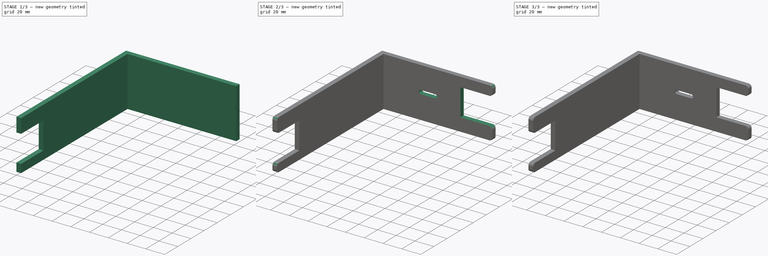
[diagram: build sequence overview — one tinted view per stage of 3, left to right]
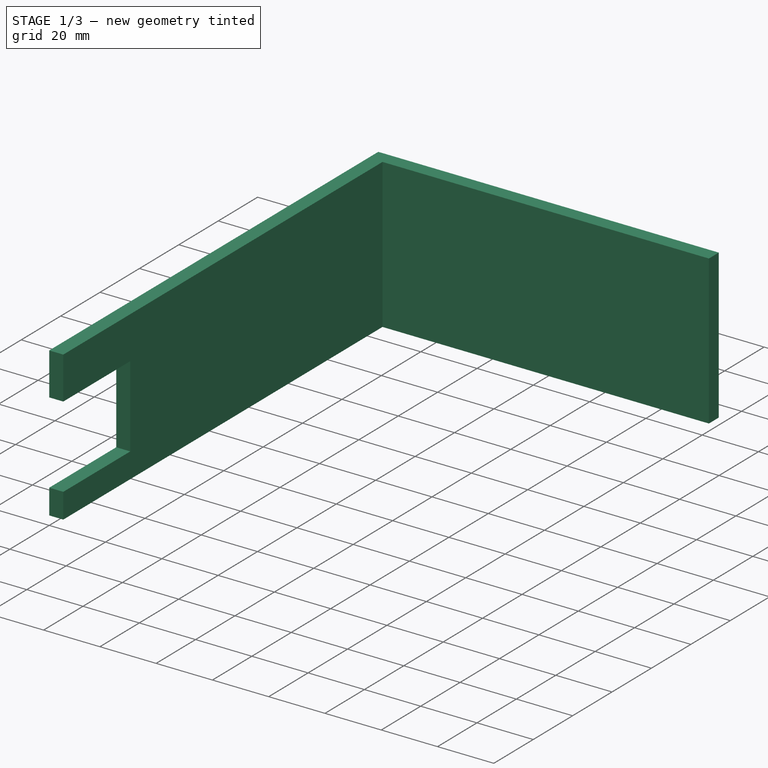
[diagram: stage 1 of 3 — iso view after this stage's code; geometry added in this stage tinted green]
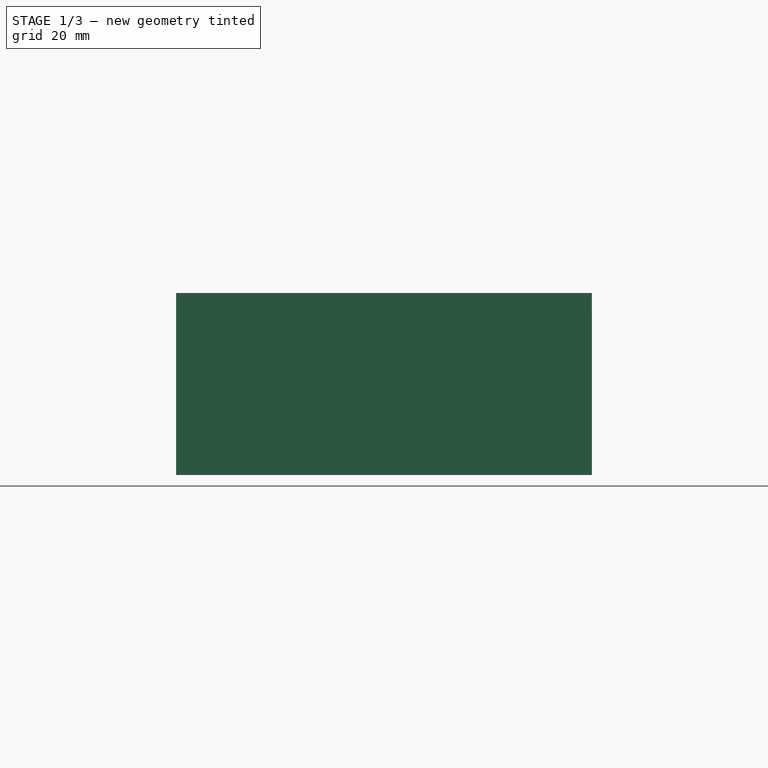
[diagram: stage 1 of 3 — front view after this stage's code; geometry added in this stage tinted green]
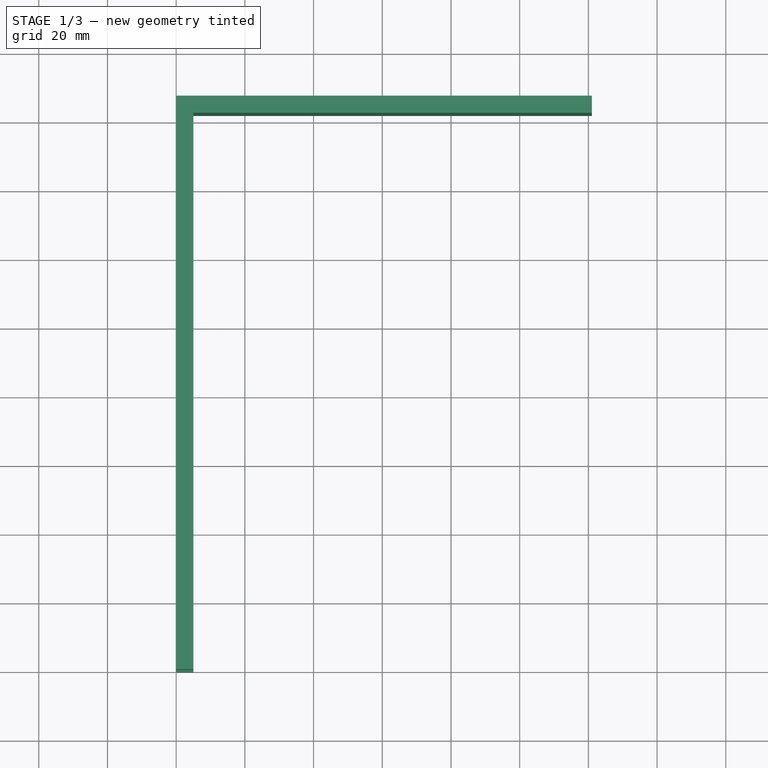
[diagram: stage 1 of 3 — top view after this stage's code; geometry added in this stage tinted green]
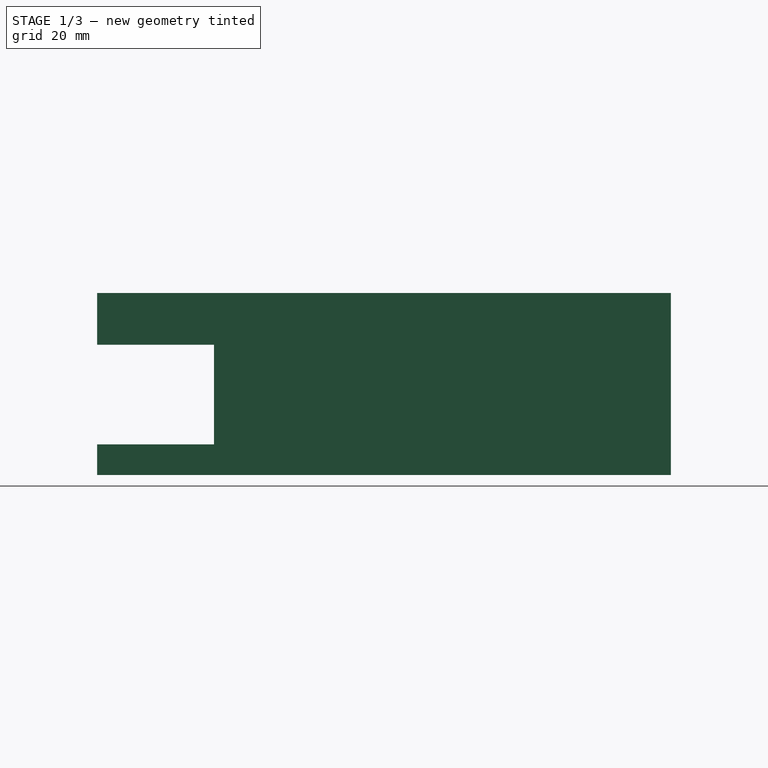
[diagram: stage 1 of 3 — right view after this stage's code; geometry added in this stage tinted green]
FCSTD DOCUMENT  (FreeCAD 0.17R8408 (Git))
Label: tie down jig
License: All rights reserved
LicenseURL: http://en.wikipedia.org/wiki/All_rights_reserved
objects: Sketcher::SketchObject×4, PartDesign::Pocket×4, PartDesign::Fillet×2, PartDesign::Pad×1, Part::Part2DObjectPython×1, PartDesign::Body×1
note: 18 computed .brp shape members not serialized (recipe doc carries the construction recipe); baked Part::Feature solids carry a one-line shape summary decoded from their .brp

FEATURE [Sketcher::SketchObject] Sketch
  MapMode = 5
  Support = -> [XY_Plane]
  sketch-geometry (6):
    g0: LineSegment StartX=0 StartY=0 StartZ=0 EndX=5 EndY=0 EndZ=0
    g1: LineSegment StartX=5 StartY=0 StartZ=0 EndX=5 EndY=162 EndZ=0
    g2: LineSegment StartX=0 StartY=167 StartZ=0 EndX=0 EndY=0 EndZ=0
    g3: LineSegment StartX=0 StartY=167 StartZ=0 EndX=121 EndY=167 EndZ=0
    g4: LineSegment StartX=121 StartY=167 StartZ=0 EndX=121 EndY=162 EndZ=0
    g5: LineSegment StartX=121 StartY=162 StartZ=0 EndX=5 EndY=162 EndZ=0
  constraints (17):
    c: Coincident(g0,g1)
    c: Coincident(g2,g0)
    c: Horizontal(g0)
    c: Vertical(g1)
    c: Vertical(g2)
    c: Distance(g2) = 167
    c: Coincident(g0,g-1)
    c: Distance(g0) = 5
    c: Coincident(g3,g4)
    c: Coincident(g4,g5)
    c: Horizontal(g3)
    c: Horizontal(g5)
    c: Vertical(g4)
    c: Distance(g4) = 5
    c: Coincident(g1,g5)
    c: Coincident(g2,g3)
    c: Distance(g3) = 121
FEATURE [PartDesign::Pad] Pad
  Length = 53
  Length2 = 100
  Profile = -> Sketch
  Type = 0
FEATURE [Sketcher::SketchObject] Sketch001
  MapMode = 5
  Placement = pos=(0,0,0) rot=(0.57735,-0.57735,-0.57735;2.0944rad)
  Support = -> [Pad]
  sketch-geometry (4):
    g0: LineSegment StartX=1 StartY=37.9111 StartZ=0 EndX=-34 EndY=37.9111 EndZ=0
    g1: LineSegment StartX=-34 StartY=37.9111 StartZ=0 EndX=-34 EndY=8.9111 EndZ=0
    g2: LineSegment StartX=-34 StartY=8.9111 StartZ=0 EndX=1 EndY=8.9111 EndZ=0
    g3: LineSegment StartX=1 StartY=8.9111 StartZ=0 EndX=1 EndY=37.9111 EndZ=0
  constraints (12):
    c: Coincident(g0,g1)
    c: Coincident(g1,g2)
    c: Coincident(g2,g3)
    c: Coincident(g3,g0)
    c: Horizontal(g0)
    c: Horizontal(g2)
    c: Vertical(g1)
    c: Vertical(g3)
    c: Distance(g0) = 35
    c: Distance(g1) = 29
    c: DistanceX(g1) = -34
    c: DistanceY(g1) = 8.9111
FEATURE [PartDesign::Pocket] Pocket
  BaseFeature = -> Pad
  Length = 5
  Profile = -> Sketch001
  Type = 0
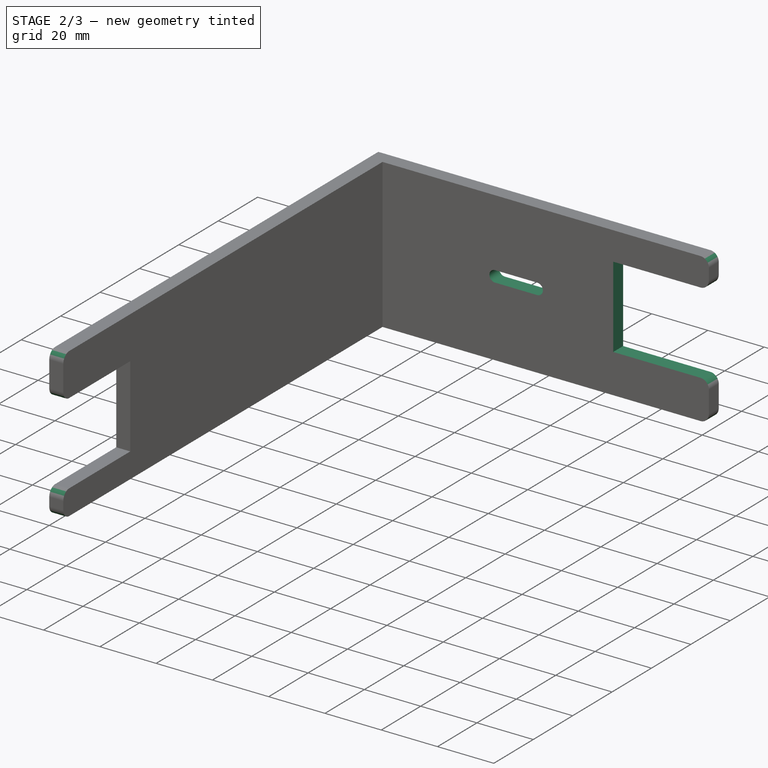
[diagram: stage 2 of 3 — iso view after this stage's code; geometry added in this stage tinted green]
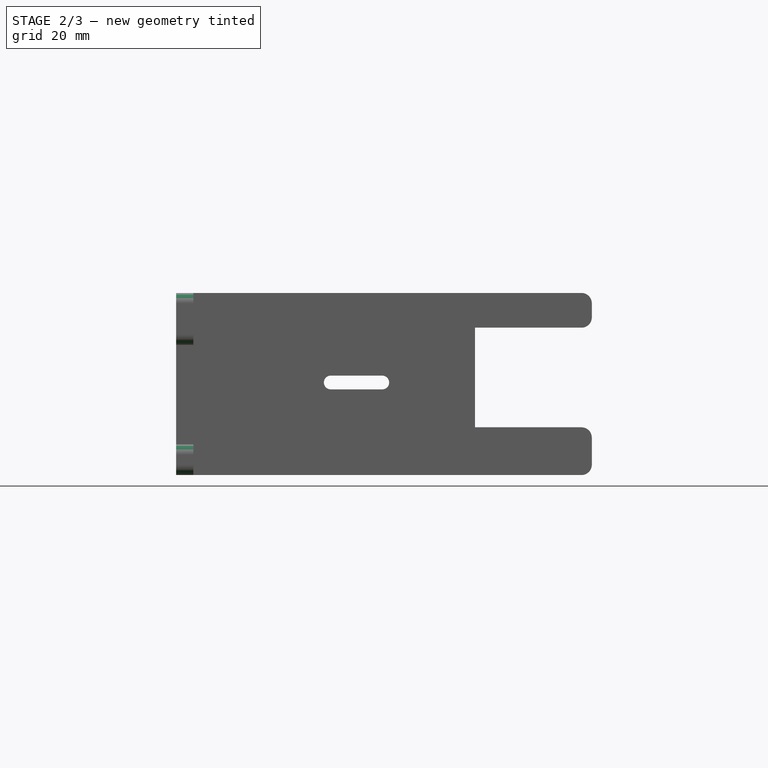
[diagram: stage 2 of 3 — front view after this stage's code; geometry added in this stage tinted green]
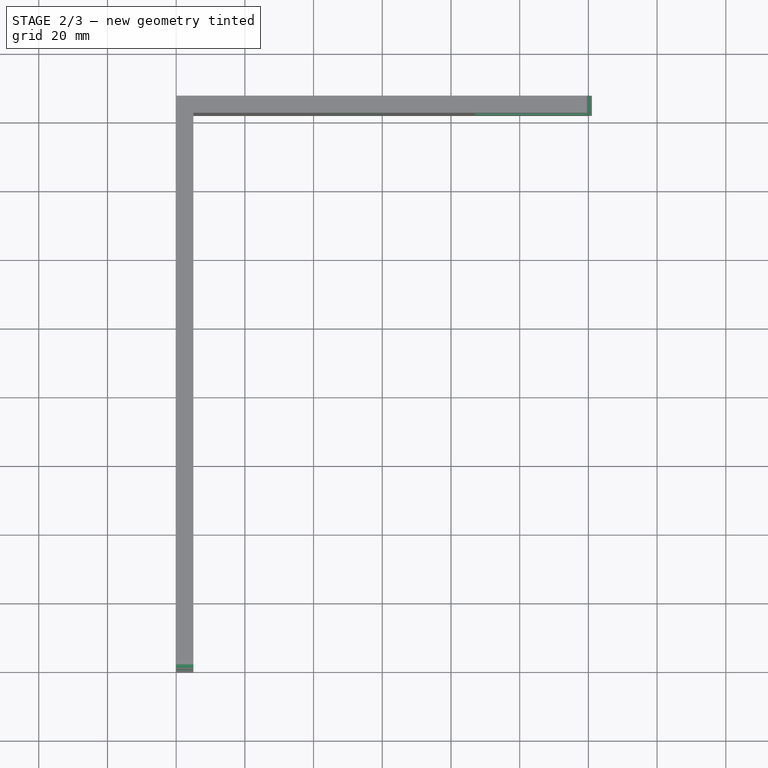
[diagram: stage 2 of 3 — top view after this stage's code; geometry added in this stage tinted green]
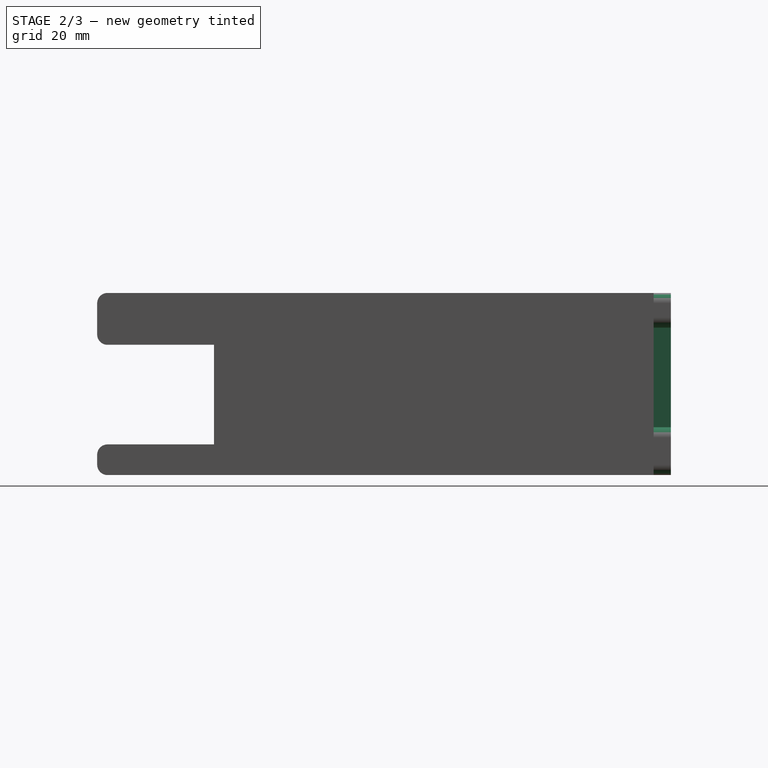
[diagram: stage 2 of 3 — right view after this stage's code; geometry added in this stage tinted green]
FEATURE [Sketcher::SketchObject] Sketch002
  MapMode = 5
  Placement = pos=(0,167,0) rot=(0,0.707107,0.707107;3.14159rad)
  Support = -> [Pocket]
  sketch-geometry (4):
    g0: LineSegment StartX=-87 StartY=42.8944 StartZ=0 EndX=-122 EndY=42.8944 EndZ=0
    g1: LineSegment StartX=-122 StartY=42.8944 StartZ=0 EndX=-122 EndY=13.8944 EndZ=0
    g2: LineSegment StartX=-122 StartY=13.8944 StartZ=0 EndX=-87 EndY=13.8944 EndZ=0
    g3: LineSegment StartX=-87 StartY=13.8944 StartZ=0 EndX=-87 EndY=42.8944 EndZ=0
  constraints (12):
    c: Coincident(g0,g1)
    c: Coincident(g1,g2)
    c: Coincident(g2,g3)
    c: Coincident(g3,g0)
    c: Horizontal(g0)
    c: Horizontal(g2)
    c: Vertical(g1)
    c: Vertical(g3)
    c: Distance(g3) = 29
    c: Distance(g0) = 35
    c: DistanceX(g2) = -87
    c: DistanceY(g2) = 13.8944
FEATURE [PartDesign::Pocket] Pocket001
  BaseFeature = -> Pocket
  Length = 5
  Profile = -> Sketch002
  Type = 0
FEATURE [PartDesign::Fillet] Fillet
  Base = -> Pocket001 [Edge1,Edge3,Edge38,Edge36,Edge37,Edge40,Edge29,Edge7]
  BaseFeature = -> Pocket001
  Radius = 3
FEATURE [Sketcher::SketchObject] Sketch003
  MapMode = 5
  Placement = pos=(0,167,0) rot=(0,0.707107,0.707107;3.14159rad)
  Support = -> [Fillet]
  sketch-geometry (4):
    g0: ArcOfCircle CenterX=-60 CenterY=26.9403 CenterZ=0 NormalX=0 NormalY=0 NormalZ=1 Radius=2 StartAngle=1.5708 EndAngle=4.71239
    g1: ArcOfCircle CenterX=-45 CenterY=26.9403 CenterZ=0 NormalX=0 NormalY=0 NormalZ=1 Radius=2 StartAngle=4.71239 EndAngle=7.85398
    g2: LineSegment StartX=-45 StartY=28.9403 StartZ=0 EndX=-60 EndY=28.9403 EndZ=0
    g3: LineSegment StartX=-45 StartY=24.9403 StartZ=0 EndX=-60 EndY=24.9403 EndZ=0
  constraints (10):
    c: Radius(g0) = 2
    c: Radius(g1) = 2
    c: PointOnObject(g2,g1)
    c: Horizontal(g2)
    c: Horizontal(g3)
    c: Coincident(g0,g2)
    c: Coincident(g0,g3)
    c: PointOnObject(g1,g3)
    c: DistanceX(g0) = -60
    c: DistanceY(g0) = 26.9403
FEATURE [PartDesign::Pocket] Pocket002
  BaseFeature = -> Fillet
  Length = 5
  Profile = -> Sketch003
  Type = 0
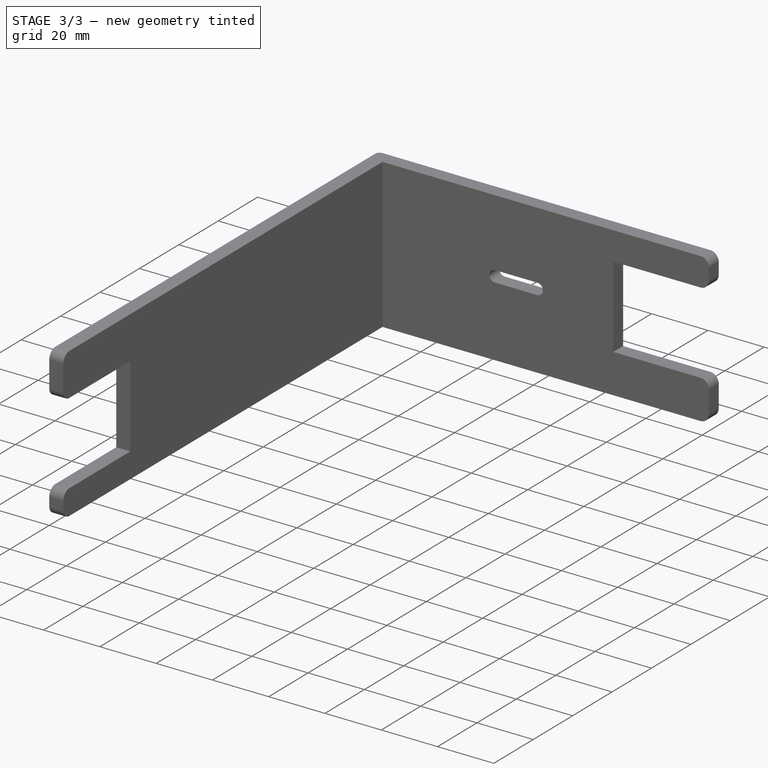
[diagram: stage 3 of 3 — iso view after this stage's code; geometry added in this stage tinted green]
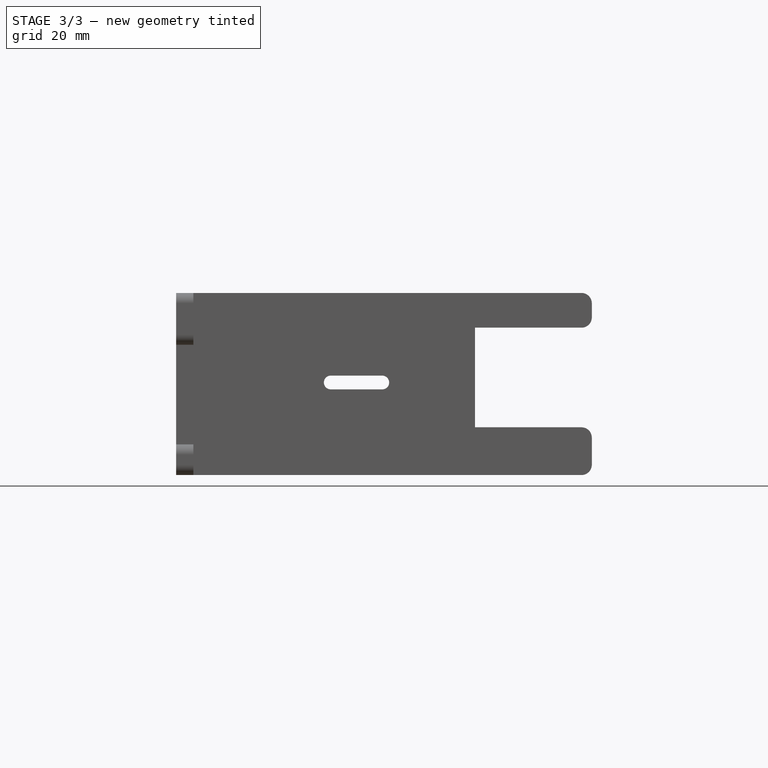
[diagram: stage 3 of 3 — front view after this stage's code; geometry added in this stage tinted green]
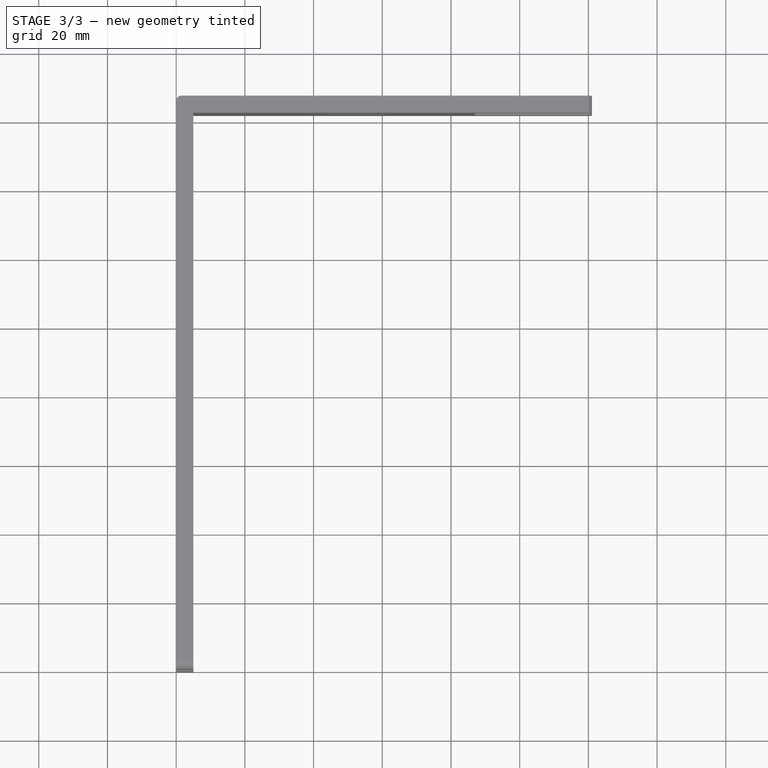
[diagram: stage 3 of 3 — top view after this stage's code; geometry added in this stage tinted green]
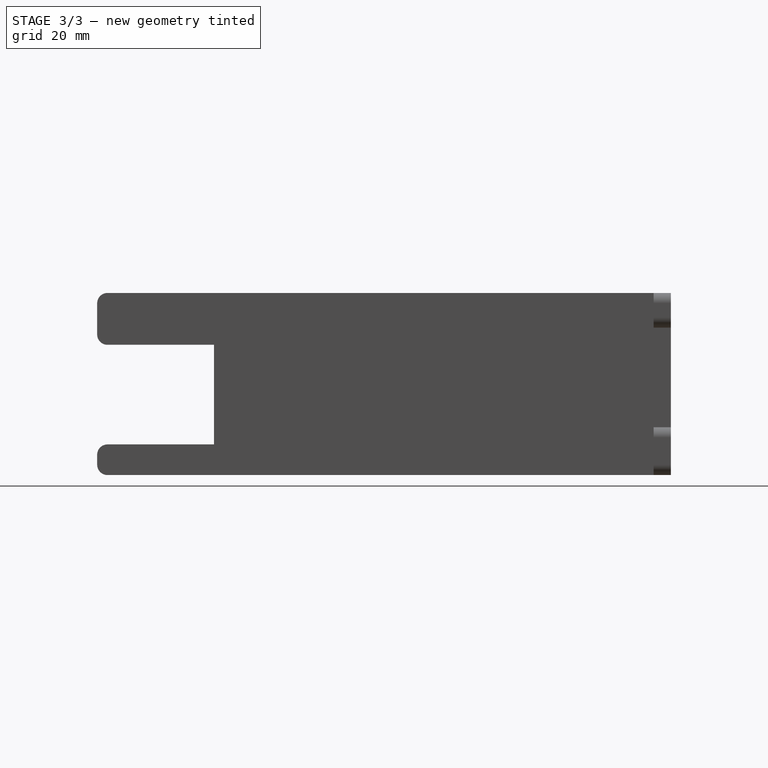
[diagram: stage 3 of 3 — right view after this stage's code; geometry added in this stage tinted green]
FEATURE [Part::Part2DObjectPython] ShapeString  # Draft 2D object (typed FeaturePython)
  FontFile = <userpath>/Desktop/Titillium-BoldUpright.otf
  Placement = pos=(0,153.4,25) rot=(0.57735,-0.57735,-0.57735;2.0944rad)
  Size = 3
  String = TAZ6_Control_Box_Tie_Down_Jig
  Tracking = 0
FEATURE [PartDesign::Pocket] Pocket003
  BaseFeature = -> Pocket002
  Length = 2
  Profile = -> ShapeString
  Type = 0
FEATURE [PartDesign::Fillet] Fillet001
  Base = -> Pocket003 [Edge21]
  BaseFeature = -> Pocket003
  Radius = 1.5
FEATURE [PartDesign::Body] Body
  Model = -> [Sketch,Pad,Sketch001,Pocket,Sketch002,Pocket001,Fillet,Sketch003,Pocket002,Pocket003,Fillet001]
  Origin = -> BodyOrigin
  Tip = -> Fillet001
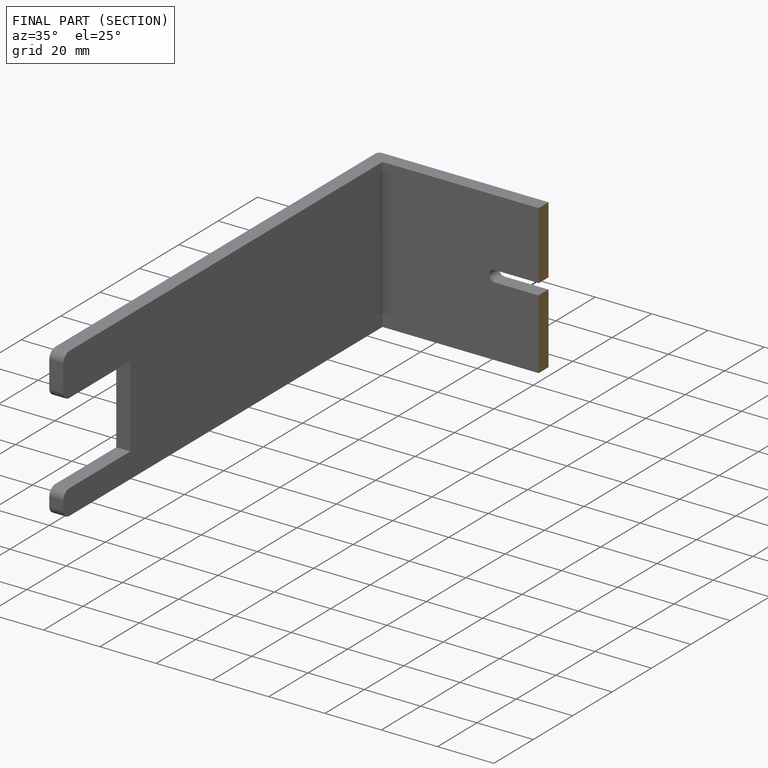
[diagram: finished part — half-section view (interior)]
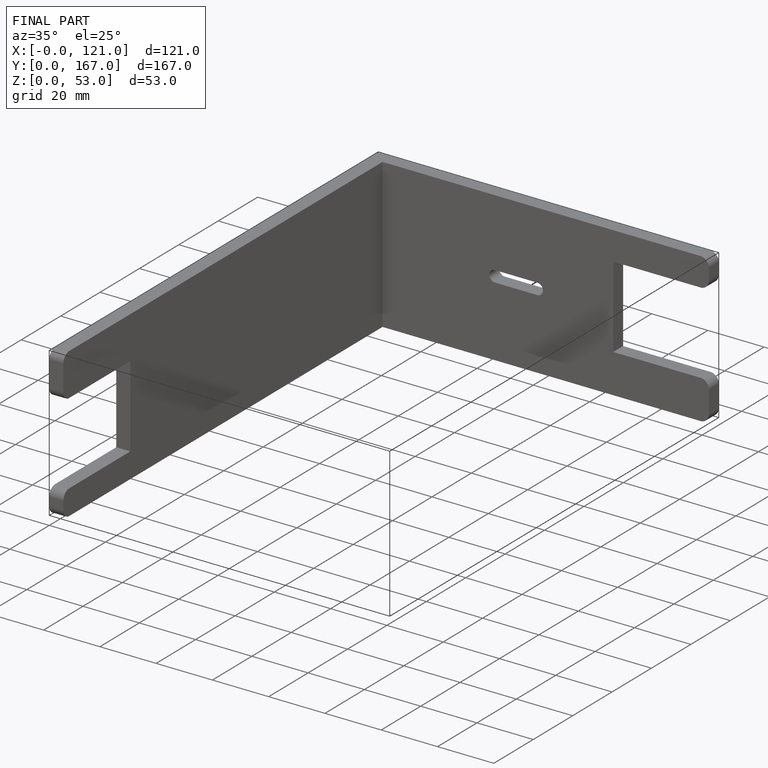
[diagram: finished part — iso view with bounding-box wireframe]
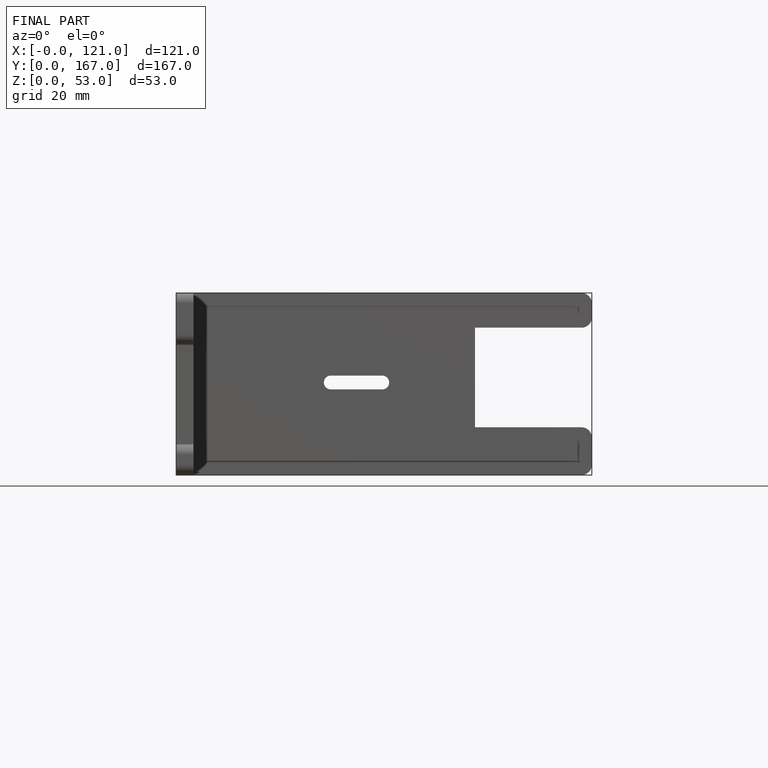
[diagram: finished part — front view with bounding-box wireframe]
